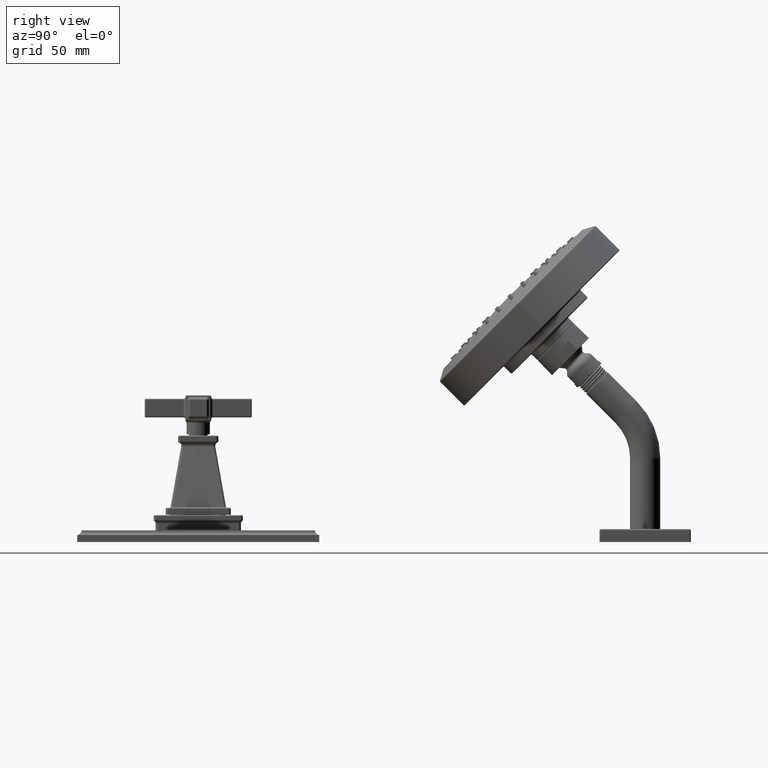
[diagram: clean part render]
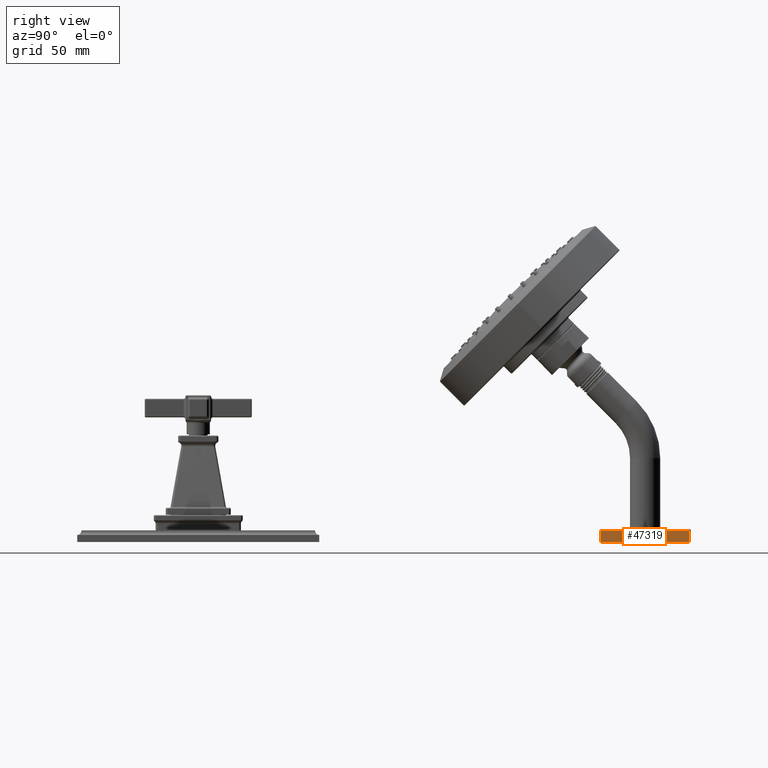
[diagram: same view with one face highlighted and labeled with its STEP entity id]
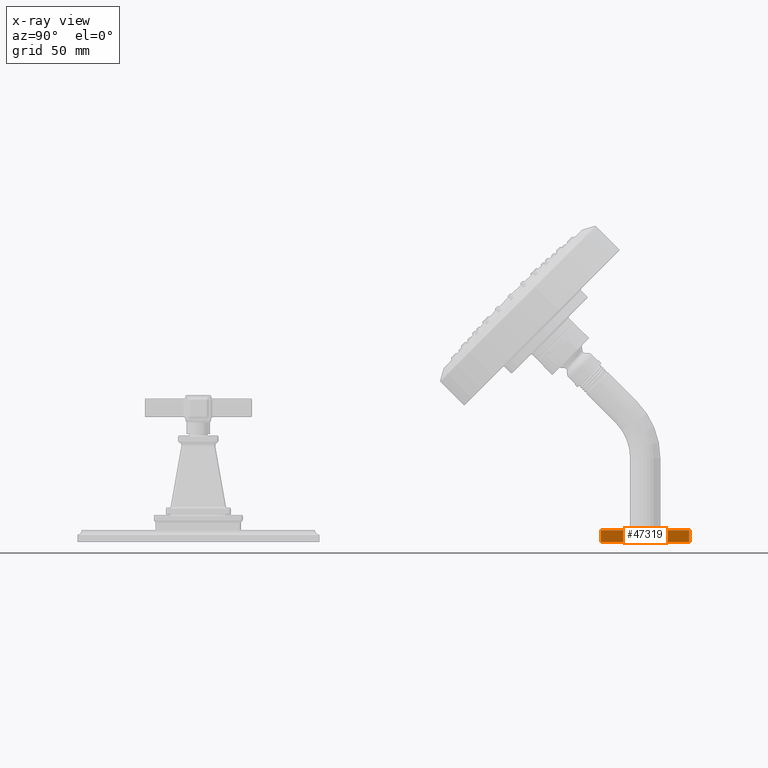
[diagram: x-ray of the same camera — body ghosted, the highlighted face saturated]
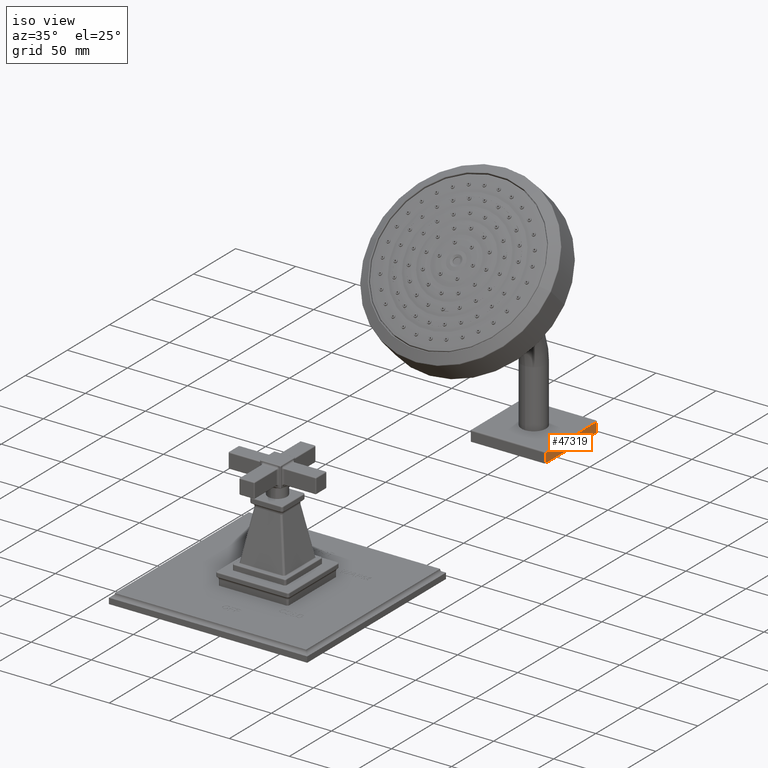
[diagram: same view with one face highlighted and labeled with its STEP entity id]
A machine part, right view. The second image highlights one B-rep face of the part: STEP entity #47319.
The next image is the same camera in x-ray: the body ghosted, the highlighted face saturated — about 0% of this face is hidden behind the body in this view.
A second angle (iso view) of the same face is appended — the face is thin or edge-on in the first view.
In plain terms, the highlighted planar face has unit normal (1, 0, 0).
Its self-contained STEP definition (entity closure, byte-faithful):
#30292=DIRECTION('',(0.E0,1.E0,0.E0));
#30293=VECTOR('',#30292,2.37E0);
#30294=CARTESIAN_POINT('',(1.225E0,1.0815E1,0.E0));
#30295=LINE('',#30294,#30293);
#30296=DIRECTION('',(0.E0,-3.222483212173E-10,-1.E0));
#30297=VECTOR('',#30296,3.1E-1);
#30298=CARTESIAN_POINT('',(1.225E0,1.081500000010E1,3.1E-1));
#30299=LINE('',#30298,#30297);
#30300=DIRECTION('',(0.E0,1.E0,0.E0));
#30301=VECTOR('',#30300,2.370000000041E0);
#30302=CARTESIAN_POINT('',(1.225E0,1.081500000010E1,3.1E-1));
#30303=LINE('',#30302,#30301);
#30304=DIRECTION('',(0.E0,-4.532116617479E-10,-1.E0));
#30305=VECTOR('',#30304,3.1E-1);
#30306=CARTESIAN_POINT('',(1.225E0,1.318500000014E1,3.1E-1));
#30307=LINE('',#30306,#30305);
#35270=CARTESIAN_POINT('',(1.225E0,1.0815E1,3.1E-1));
#35271=VERTEX_POINT('',#35270);
#35272=CARTESIAN_POINT('',(1.225E0,1.318500000014E1,3.1E-1));
#35273=VERTEX_POINT('',#35272);
#35277=CARTESIAN_POINT('',(1.225E0,1.3185E1,0.E0));
#35279=VERTEX_POINT('',#35277);
#35290=CARTESIAN_POINT('',(1.225E0,1.0815E1,0.E0));
#35291=VERTEX_POINT('',#35290);
#47307=CARTESIAN_POINT('',(1.225E0,1.0775E1,0.E0));
#47308=DIRECTION('',(1.E0,0.E0,0.E0));
#47309=DIRECTION('',(0.E0,1.E0,0.E0));
#47310=AXIS2_PLACEMENT_3D('',#47307,#47308,#47309);
#47311=PLANE('',#47310);
#47312=ORIENTED_EDGE('',*,*,#47288,.F.);
#47314=ORIENTED_EDGE('',*,*,#47313,.F.);
#47315=ORIENTED_EDGE('',*,*,#47210,.T.);
#47316=ORIENTED_EDGE('',*,*,#47299,.T.);
#47317=EDGE_LOOP('',(#47312,#47314,#47315,#47316));
#47318=FACE_OUTER_BOUND('',#47317,.F.);
#47319=ADVANCED_FACE('',(#47318),#47311,.T.);
#47210=EDGE_CURVE('',#35271,#35273,#30303,.T.);
#47288=EDGE_CURVE('',#35291,#35279,#30295,.T.);
#47299=EDGE_CURVE('',#35273,#35279,#30307,.T.);
#47313=EDGE_CURVE('',#35271,#35291,#30299,.T.);